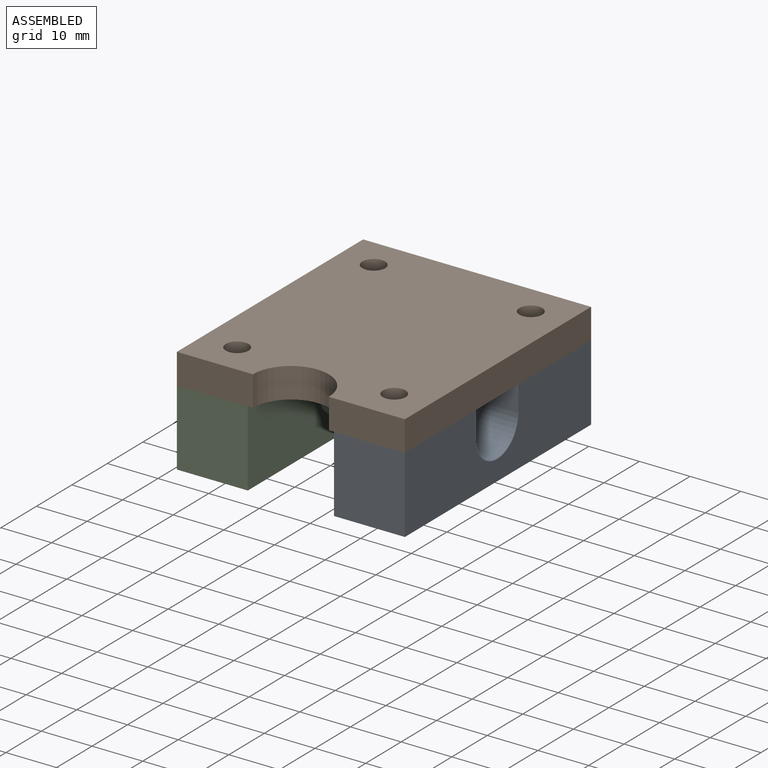
[diagram: assembled view]
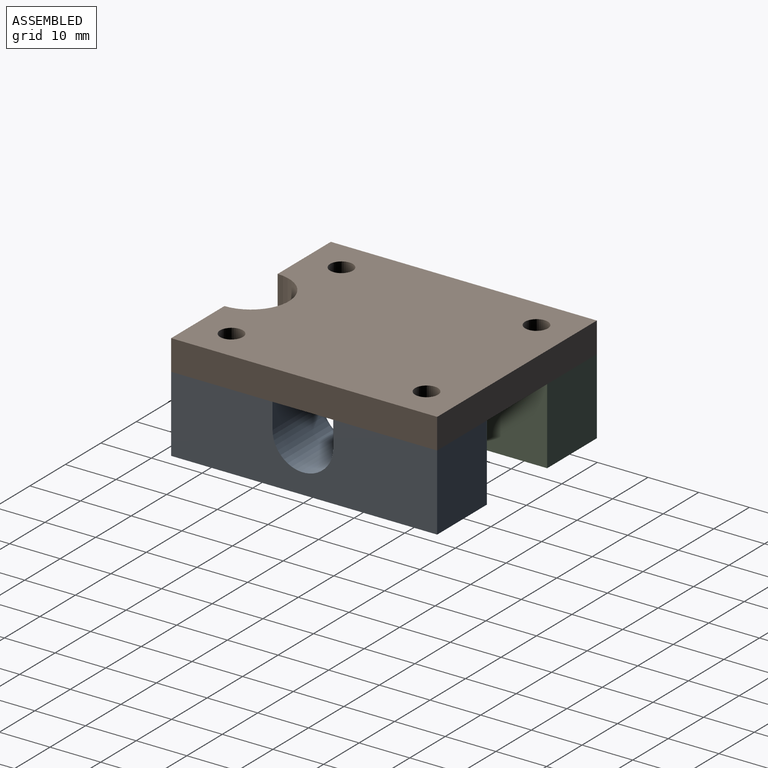
[diagram: assembled view, second angle]
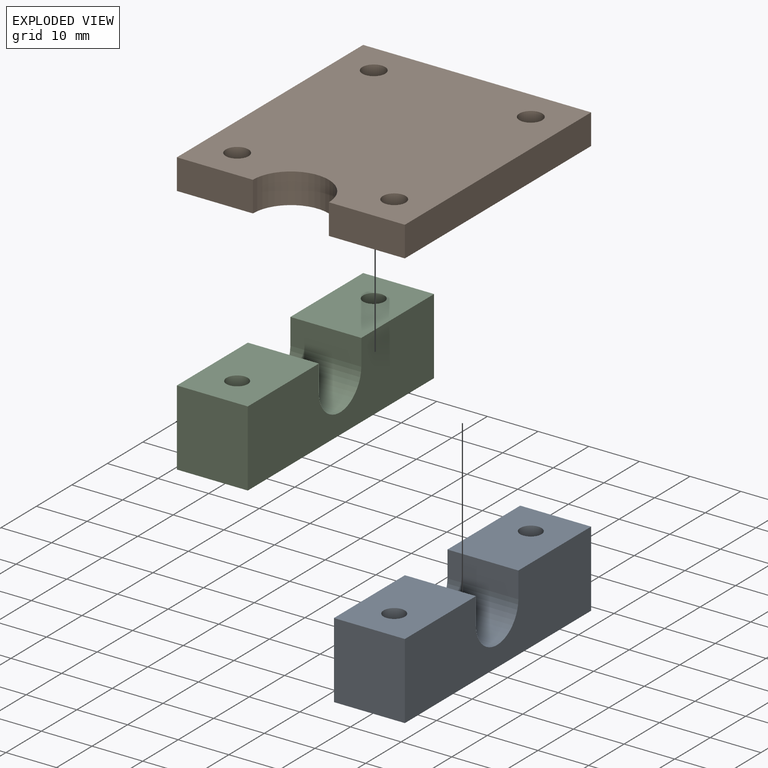
[diagram: exploded view]
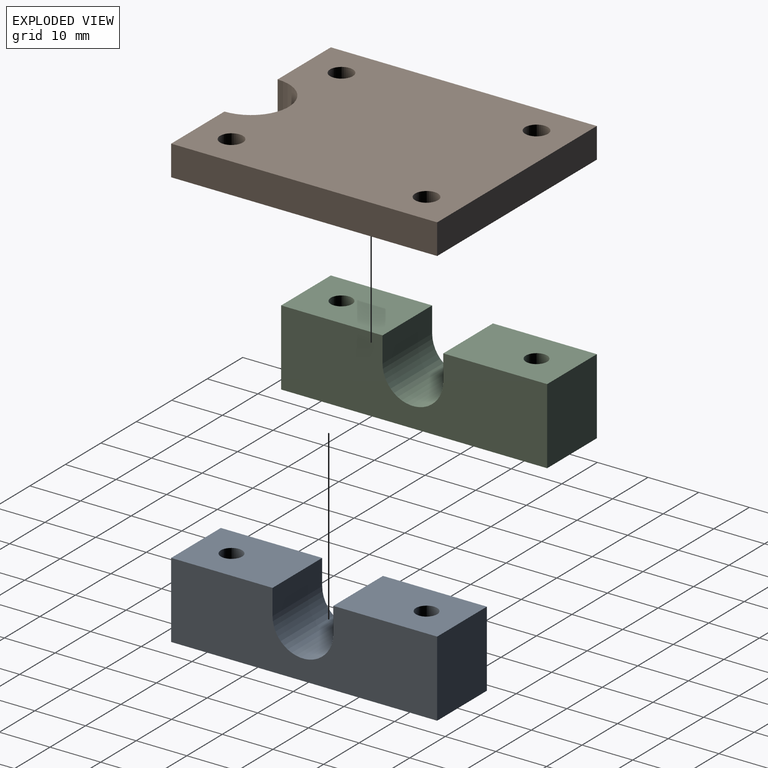
[diagram: exploded view, second angle]
ASSEMBLY  parts=3 mates=2
PART A: 26 faces, bbox 14x52.5x15 mm
  f0: plane 52.5x14mm, normal (0,0,-1), area 650.1mm2, adj f2,f3,f4,f6,f12,f13,f14,f15
  f1: plane 20x14mm, normal (0,0,1), area 266.1mm2, adj f2,f3,f6,f7,f10
  f2: plane 52.5x15mm, normal (1,0,0), area 671mm2, adj f0,f1,f3,f4,f8,f9,f10,f11
  f3: plane 15x14mm, normal (0,-1,0), area 210mm2, adj f0,f1,f2,f6
  f4: plane 15x14mm, normal (0,1,0), area 210mm2, adj f0,f2,f6,f8
  f5: cylinder r=2.1mm len=10mm, axis (0,0,-1), area 131.9mm2, adj f8,f18
  f6: plane 52.5x15mm, normal (-1,0,0), area 671mm2, adj f0,f1,f3,f4,f8,f9,f10,f11
  f7: cylinder r=2.1mm len=10mm, axis (0,0,-1), area 131.9mm2, adj f1,f25
  f8: plane 20.5x14mm, normal (0,0,1), area 273.2mm2, adj f2,f4,f5,f6,f11
  f9: cylinder r=6mm len=14mm, axis (-1,0,0), area 261.1mm2, adj f2,f6,f10,f11
  f10: plane 14x5.04mm, normal (0,1,0), area 70.5mm2, adj f1,f2,f6,f9
  f11: plane 14x5.15mm, normal (0,-1,0), area 72.1mm2, adj f2,f6,f8,f9
  f12: plane 5x3.5mm, normal (0.5,-0.87,0), area 20.2mm2, adj f0,f13,f17,f18
  f13: plane 5x4.04mm, normal (1,0,0), area 20.2mm2, adj f0,f12,f14,f18
  f14: plane 5x3.5mm, normal (0.5,0.87,0), area 20.2mm2, adj f0,f13,f15,f18
  f15: plane 5x3.5mm, normal (-0.5,0.87,0), area 20.2mm2, adj f0,f14,f16,f18
  f16: plane 5x4.04mm, normal (-1,0,0), area 20.2mm2, adj f0,f15,f17,f18
  f17: plane 5x3.5mm, normal (-0.5,-0.87,0), area 20.2mm2, adj f0,f12,f16,f18
  f18: plane 8.08x7mm, normal (0,0,-1), area 28.6mm2, adj f5,f12,f13,f14,f15,f16,f17
  f19: plane 5x3.5mm, normal (0.5,-0.87,0), area 20.2mm2, adj f0,f20,f24,f25
  f20: plane 5x4.04mm, normal (1,0,0), area 20.2mm2, adj f0,f19,f21,f25
  f21: plane 5x3.5mm, normal (0.5,0.87,0), area 20.2mm2, adj f0,f20,f22,f25
  f22: plane 5x3.5mm, normal (-0.5,0.87,0), area 20.2mm2, adj f0,f21,f23,f25
  f23: plane 5x4.04mm, normal (-1,0,0), area 20.2mm2, adj f0,f22,f24,f25
  f24: plane 5x3.5mm, normal (-0.5,-0.87,0), area 20.2mm2, adj f0,f19,f23,f25
  f25: plane 8.08x7mm, normal (0,0,-1), area 28.6mm2, adj f7,f19,f20,f21,f22,f23,f24
PART B: 12 faces, bbox 45x52.5x6 mm
  f0: plane 15x6mm, normal (0,-1,0), area 90mm2, adj f1,f8,f10,f11
  f1: cylinder r=7.5mm len=15mm, axis (0,0,-1), area 141.4mm2, adj f0,f2,f10,f11
  f2: plane 15x6mm, normal (0,-1,0), area 90mm2, adj f1,f3,f10,f11
  f3: plane 52.5x6mm, normal (1,0,0), area 315mm2, adj f2,f4,f10,f11
  f4: plane 45x6mm, normal (0,1,0), area 270mm2, adj f3,f8,f10,f11
  f5: cylinder r=2.25mm len=6mm, axis (0,0,-1), area 84.8mm2, adj f10,f11
  f6: cylinder r=2.25mm len=6mm, axis (0,0,-1), area 84.8mm2, adj f10,f11
  f7: cylinder r=2.25mm len=6mm, axis (0,0,-1), area 84.8mm2, adj f10,f11
  f8: plane 52.5x6mm, normal (-1,0,0), area 315mm2, adj f0,f4,f10,f11
  f9: cylinder r=2.25mm len=6mm, axis (0,0,-1), area 84.8mm2, adj f10,f11
  f10: plane 52.5x45mm, normal (0,0,1), area 2210.5mm2, adj f0,f1,f2,f3,f4,f5,f6,f7
  f11: plane 52.5x45mm, normal (0,0,-1), area 2210.5mm2, adj f0,f1,f2,f3,f4,f5,f6,f7
PART C: same geometry as A
PLACE A t=(20.72,11.32,23.33)mm
PLACE B t=(27.72,4.32,38.33)mm
PLACE C t=(-10.28,11.32,23.33)mm
MATE fastened A.f5 <-> B.f6  axis (0,0,1) through (20.72,49.82,38.33)mm
MATE fastened C.f5 <-> B.f7  axis (0,0,1) through (-10.28,49.82,38.33)mm
